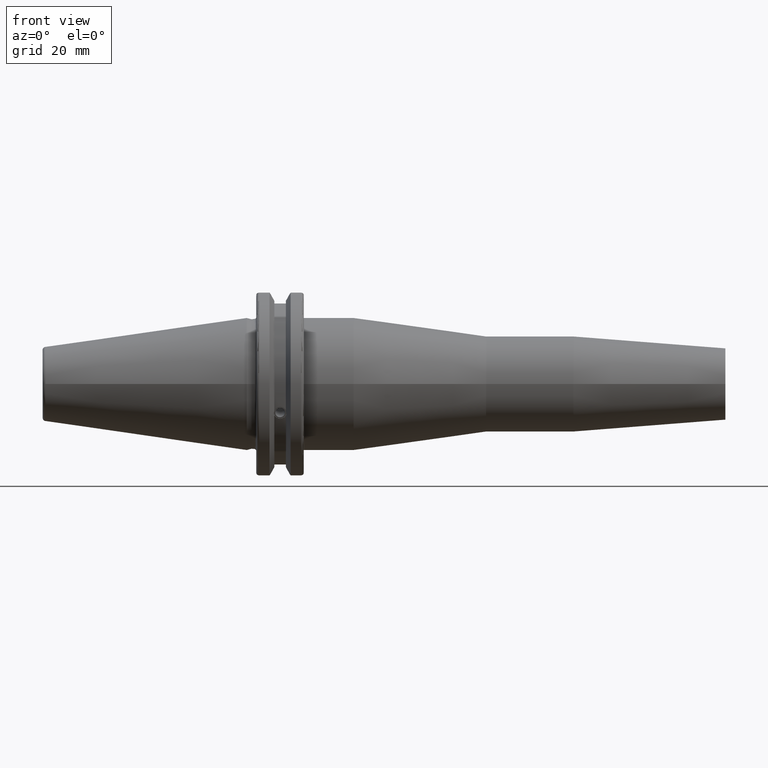
[diagram: clean part render]
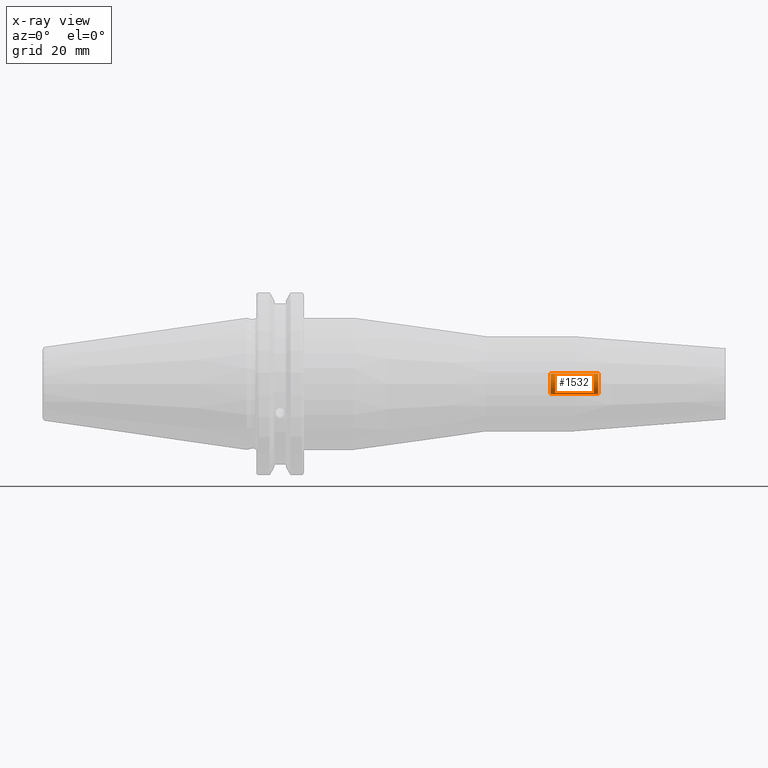
[diagram: x-ray — body ghosted, one internal face saturated and labeled with its STEP entity id]
A machine part, front view, then the same camera in x-ray: the body is ghosted and one INTERNAL B-rep face — a face not visible from any outside direction — is saturated and labeled: STEP entity #1532.
In plain terms, the highlighted cylindrical surface (bore or boss wall) has radius 3.4585 mm, axis along (1, 0, 0).
Its self-contained STEP definition (entity closure, byte-faithful):
#144=CYLINDRICAL_SURFACE('',#1650,3.4585);
#178=FACE_OUTER_BOUND('',#269,.T.);
#269=EDGE_LOOP('',(#1052,#1053,#1054,#1055,#1056));
#378=LINE('',#2313,#478);
#478=VECTOR('',#1850,3.4585);
#576=CIRCLE('',#1651,3.4585);
#577=CIRCLE('',#1652,3.4585);
#578=CIRCLE('',#1653,3.4585);
#651=VERTEX_POINT('',#2310);
#652=VERTEX_POINT('',#2312);
#653=VERTEX_POINT('',#2314);
#809=EDGE_CURVE('',#651,#651,#576,.T.);
#810=EDGE_CURVE('',#651,#652,#378,.T.);
#811=EDGE_CURVE('',#653,#652,#577,.T.);
#812=EDGE_CURVE('',#652,#653,#578,.T.);
#1052=ORIENTED_EDGE('',*,*,#809,.F.);
#1053=ORIENTED_EDGE('',*,*,#810,.T.);
#1054=ORIENTED_EDGE('',*,*,#811,.F.);
#1055=ORIENTED_EDGE('',*,*,#812,.F.);
#1056=ORIENTED_EDGE('',*,*,#810,.F.);
#1532=ADVANCED_FACE('',(#178),#144,.F.);
#1650=AXIS2_PLACEMENT_3D('',#2309,#1846,#1847);
#1651=AXIS2_PLACEMENT_3D('',#2311,#1848,#1849);
#1652=AXIS2_PLACEMENT_3D('',#2315,#1851,#1852);
#1653=AXIS2_PLACEMENT_3D('',#2316,#1853,#1854);
#1846=DIRECTION('center_axis',(1.,0.,0.));
#1847=DIRECTION('ref_axis',(0.,0.,-1.));
#1848=DIRECTION('center_axis',(-1.,0.,0.));
#1849=DIRECTION('ref_axis',(0.,0.,-1.));
#1850=DIRECTION('',(-1.,0.,0.));
#1851=DIRECTION('center_axis',(1.,0.,0.));
#1852=DIRECTION('ref_axis',(0.,0.,-1.));
#1853=DIRECTION('center_axis',(1.,0.,0.));
#1854=DIRECTION('ref_axis',(0.,0.,-1.));
#2309=CARTESIAN_POINT('Origin',(-127.167798657495,0.,0.));
#2310=CARTESIAN_POINT('',(117.5,-4.23544095485112E-16,3.4585));
#2311=CARTESIAN_POINT('Origin',(117.5,0.,0.));
#2312=CARTESIAN_POINT('',(101.577517572772,-4.23544095485112E-16,3.4585));
#2313=CARTESIAN_POINT('',(-127.167798657495,-4.23544095485112E-16,3.4585));
#2314=CARTESIAN_POINT('',(101.577517572772,-4.23544095485116E-16,-3.45850000000003));
#2315=CARTESIAN_POINT('Origin',(101.577517572772,0.,0.));
#2316=CARTESIAN_POINT('Origin',(101.577517572772,0.,0.));